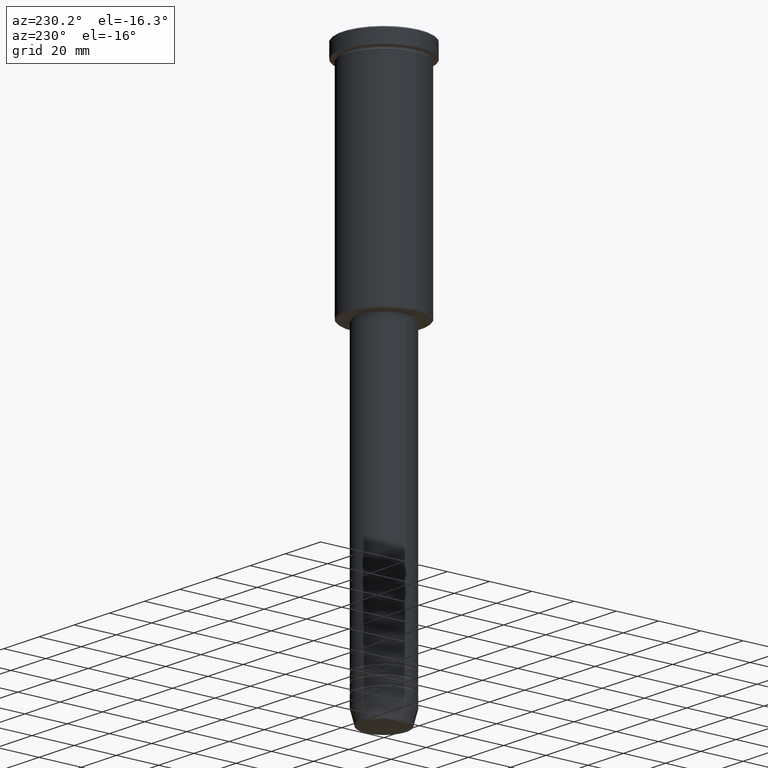
[diagram: clean part render]
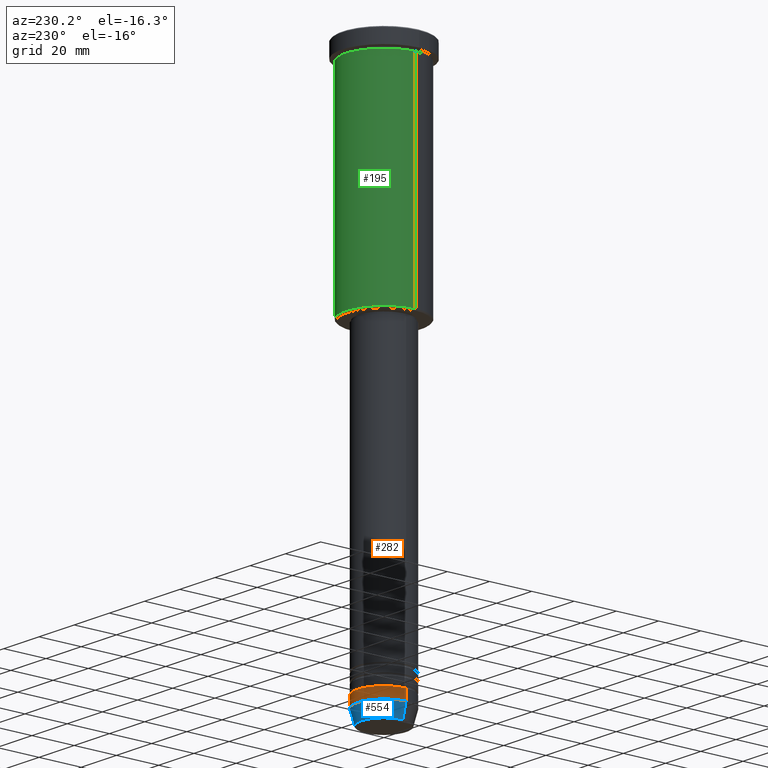
[diagram: same view with three faces highlighted in distinct colors, each labeled with its STEP entity id]
A machine part, auxiliary view with three faces highlighted in distinct colors.
Their STEP definitions:

[orange] entity #282 — the highlighted cylindrical surface (edge-blend (fillet) strip) has radius 12.5 mm, axis along (-0, -0, 1).
#1 = CYLINDRICAL_SURFACE ( 'NONE', #907, 12.50000000000000000 ) ;
#61 = CARTESIAN_POINT ( 'NONE',  ( 0.000000000000000000, 0.000000000000000000, -248.0000000000000000 ) ) ;
#74 = CARTESIAN_POINT ( 'NONE',  ( -12.50000000000000000, 1.530808498934191521E-15, -248.0000000000000000 ) ) ;
#86 = EDGE_CURVE ( 'NONE', #438, #116, #517, .T. ) ;
#93 = EDGE_CURVE ( 'NONE', #431, #438, #347, .T. ) ;
#116 = VERTEX_POINT ( 'NONE', #74 ) ;
#136 = CARTESIAN_POINT ( 'NONE',  ( 12.50000000000000000, 0.000000000000000000, -253.0000000000000000 ) ) ;
#167 = VECTOR ( 'NONE', #1036, 1000.000000000000000 ) ;
#196 = DIRECTION ( 'NONE',  ( -0.000000000000000000, -0.000000000000000000, 1.000000000000000000 ) ) ;
#202 = EDGE_CURVE ( 'NONE', #857, #116, #375, .T. ) ;
#222 = FACE_OUTER_BOUND ( 'NONE', #1018, .T. ) ;
#251 = DIRECTION ( 'NONE',  ( -0.000000000000000000, -0.000000000000000000, 1.000000000000000000 ) ) ;
#274 = CARTESIAN_POINT ( 'NONE',  ( -12.50000000000000000, 1.530808498934191521E-15, 0.000000000000000000 ) ) ;
#282 = ADVANCED_FACE ( 'NONE', ( #222 ), #1, .T. ) ;
#305 = EDGE_CURVE ( 'NONE', #431, #857, #1025, .T. ) ;
#306 = ORIENTED_EDGE ( 'NONE', *, *, #305, .T. ) ;
#347 = LINE ( 'NONE', #1066, #966 ) ;
#368 = CARTESIAN_POINT ( 'NONE',  ( 0.000000000000000000, 0.000000000000000000, 0.000000000000000000 ) ) ;
#375 = LINE ( 'NONE', #274, #167 ) ;
#429 = DIRECTION ( 'NONE',  ( 1.000000000000000000, 0.000000000000000000, 0.000000000000000000 ) ) ;
#431 = VERTEX_POINT ( 'NONE', #136 ) ;
#438 = VERTEX_POINT ( 'NONE', #965 ) ;
#451 = AXIS2_PLACEMENT_3D ( 'NONE', #1011, #548, #924 ) ;
#517 = CIRCLE ( 'NONE', #693, 12.50000000000000000 ) ;
#548 = DIRECTION ( 'NONE',  ( -0.000000000000000000, -0.000000000000000000, 1.000000000000000000 ) ) ;
#574 = ORIENTED_EDGE ( 'NONE', *, *, #93, .F. ) ;
#693 = AXIS2_PLACEMENT_3D ( 'NONE', #61, #1161, #429 ) ;
#724 = DIRECTION ( 'NONE',  ( 1.000000000000000000, 0.000000000000000000, 0.000000000000000000 ) ) ;
#733 = ORIENTED_EDGE ( 'NONE', *, *, #86, .F. ) ;
#791 = CARTESIAN_POINT ( 'NONE',  ( -12.50000000000000000, 1.530808498934191521E-15, -253.0000000000000000 ) ) ;
#857 = VERTEX_POINT ( 'NONE', #791 ) ;
#907 = AXIS2_PLACEMENT_3D ( 'NONE', #368, #196, #724 ) ;
#924 = DIRECTION ( 'NONE',  ( 1.000000000000000000, 0.000000000000000000, 0.000000000000000000 ) ) ;
#965 = CARTESIAN_POINT ( 'NONE',  ( 12.50000000000000000, 0.000000000000000000, -248.0000000000000000 ) ) ;
#966 = VECTOR ( 'NONE', #251, 1000.000000000000000 ) ;
#1011 = CARTESIAN_POINT ( 'NONE',  ( 0.000000000000000000, 0.000000000000000000, -253.0000000000000000 ) ) ;
#1014 = ORIENTED_EDGE ( 'NONE', *, *, #202, .T. ) ;
#1018 = EDGE_LOOP ( 'NONE', ( #306, #1014, #733, #574 ) ) ;
#1025 = CIRCLE ( 'NONE', #451, 12.50000000000000000 ) ;
#1036 = DIRECTION ( 'NONE',  ( -0.000000000000000000, -0.000000000000000000, 1.000000000000000000 ) ) ;
#1066 = CARTESIAN_POINT ( 'NONE',  ( 12.50000000000000000, 0.000000000000000000, 0.000000000000000000 ) ) ;
#1161 = DIRECTION ( 'NONE',  ( -0.000000000000000000, -0.000000000000000000, 1.000000000000000000 ) ) ;

[blue] entity #554 — the highlighted conical surface has half-angle 15 deg.
#34 = VECTOR ( 'NONE', #1108, 1000.000000000000000 ) ;
#70 = DIRECTION ( 'NONE',  ( 1.000000000000000000, 0.000000000000000000, 0.000000000000000000 ) ) ;
#134 = VERTEX_POINT ( 'NONE', #984 ) ;
#136 = CARTESIAN_POINT ( 'NONE',  ( 12.50000000000000000, 0.000000000000000000, -253.0000000000000000 ) ) ;
#182 = ORIENTED_EDGE ( 'NONE', *, *, #1017, .T. ) ;
#305 = EDGE_CURVE ( 'NONE', #431, #857, #1025, .T. ) ;
#399 = VECTOR ( 'NONE', #893, 1000.000000000000000 ) ;
#421 = ORIENTED_EDGE ( 'NONE', *, *, #305, .F. ) ;
#431 = VERTEX_POINT ( 'NONE', #136 ) ;
#440 = FACE_OUTER_BOUND ( 'NONE', #753, .T. ) ;
#451 = AXIS2_PLACEMENT_3D ( 'NONE', #1011, #548, #924 ) ;
#468 = ORIENTED_EDGE ( 'NONE', *, *, #712, .F. ) ;
#514 = CARTESIAN_POINT ( 'NONE',  ( 10.72365507213719127, 0.000000000000000000, -259.6294095225512706 ) ) ;
#538 = CARTESIAN_POINT ( 'NONE',  ( 0.000000000000000000, 0.000000000000000000, -253.0000000000000000 ) ) ;
#548 = DIRECTION ( 'NONE',  ( -0.000000000000000000, -0.000000000000000000, 1.000000000000000000 ) ) ;
#554 = ADVANCED_FACE ( 'NONE', ( #440 ), #813, .T. ) ;
#570 = LINE ( 'NONE', #648, #34 ) ;
#618 = DIRECTION ( 'NONE',  ( -0.000000000000000000, -0.000000000000000000, 1.000000000000000000 ) ) ;
#648 = CARTESIAN_POINT ( 'NONE',  ( 12.50000000000000000, 0.000000000000000000, -253.0000000000000000 ) ) ;
#665 = ORIENTED_EDGE ( 'NONE', *, *, #1053, .T. ) ;
#712 = EDGE_CURVE ( 'NONE', #1073, #431, #570, .T. ) ;
#753 = EDGE_LOOP ( 'NONE', ( #182, #665, #421, #468 ) ) ;
#791 = CARTESIAN_POINT ( 'NONE',  ( -12.50000000000000000, 1.530808498934191521E-15, -253.0000000000000000 ) ) ;
#803 = DIRECTION ( 'NONE',  ( -0.000000000000000000, -0.000000000000000000, 1.000000000000000000 ) ) ;
#813 = CONICAL_SURFACE ( 'NONE', #930, 12.50000000000000000, 0.2617993877991500740 ) ;
#814 = CIRCLE ( 'NONE', #1121, 10.72365507213719127 ) ;
#857 = VERTEX_POINT ( 'NONE', #791 ) ;
#893 = DIRECTION ( 'NONE',  ( -0.2588190451025213501, 3.169619151431772337E-17, 0.9659258262890680902 ) ) ;
#924 = DIRECTION ( 'NONE',  ( 1.000000000000000000, 0.000000000000000000, 0.000000000000000000 ) ) ;
#930 = AXIS2_PLACEMENT_3D ( 'NONE', #538, #803, #70 ) ;
#984 = CARTESIAN_POINT ( 'NONE',  ( -10.72365507213719127, 1.422038742429750516E-15, -259.6294095225512706 ) ) ;
#989 = LINE ( 'NONE', #1169, #399 ) ;
#1011 = CARTESIAN_POINT ( 'NONE',  ( 0.000000000000000000, 0.000000000000000000, -253.0000000000000000 ) ) ;
#1017 = EDGE_CURVE ( 'NONE', #1073, #134, #814, .T. ) ;
#1025 = CIRCLE ( 'NONE', #451, 12.50000000000000000 ) ;
#1053 = EDGE_CURVE ( 'NONE', #134, #857, #989, .T. ) ;
#1073 = VERTEX_POINT ( 'NONE', #514 ) ;
#1079 = CARTESIAN_POINT ( 'NONE',  ( 0.000000000000000000, 0.000000000000000000, -259.6294095225512706 ) ) ;
#1085 = DIRECTION ( 'NONE',  ( 1.000000000000000000, 0.000000000000000000, 0.000000000000000000 ) ) ;
#1108 = DIRECTION ( 'NONE',  ( 0.2588190451025213501, 0.000000000000000000, 0.9659258262890680902 ) ) ;
#1121 = AXIS2_PLACEMENT_3D ( 'NONE', #1079, #618, #1085 ) ;
#1169 = CARTESIAN_POINT ( 'NONE',  ( -12.50000000000000000, 1.530808498934191521E-15, -253.0000000000000000 ) ) ;

[green] entity #195 — the highlighted cylindrical surface (partial cylindrical patch) has radius 18 mm, axis along (-0, -0, 1).
#12 = EDGE_LOOP ( 'NONE', ( #83, #828, #1034, #231 ) ) ;
#18 = CARTESIAN_POINT ( 'NONE',  ( 0.000000000000000000, 0.000000000000000000, 0.000000000000000000 ) ) ;
#76 = DIRECTION ( 'NONE',  ( -0.000000000000000000, -0.000000000000000000, 1.000000000000000000 ) ) ;
#83 = ORIENTED_EDGE ( 'NONE', *, *, #1059, .T. ) ;
#156 = CARTESIAN_POINT ( 'NONE',  ( -18.00000000000000000, 2.204364238465235428E-15, 0.000000000000000000 ) ) ;
#195 = ADVANCED_FACE ( 'NONE', ( #454 ), #458, .T. ) ;
#231 = ORIENTED_EDGE ( 'NONE', *, *, #1152, .F. ) ;
#288 = LINE ( 'NONE', #563, #505 ) ;
#345 = AXIS2_PLACEMENT_3D ( 'NONE', #819, #76, #903 ) ;
#382 = AXIS2_PLACEMENT_3D ( 'NONE', #416, #943, #486 ) ;
#386 = VERTEX_POINT ( 'NONE', #865 ) ;
#416 = CARTESIAN_POINT ( 'NONE',  ( 0.000000000000000000, 0.000000000000000000, -7.999999999999996447 ) ) ;
#422 = LINE ( 'NONE', #156, #1160 ) ;
#454 = FACE_OUTER_BOUND ( 'NONE', #12, .T. ) ;
#458 = CYLINDRICAL_SURFACE ( 'NONE', #773, 18.00000000000000000 ) ;
#474 = VERTEX_POINT ( 'NONE', #497 ) ;
#486 = DIRECTION ( 'NONE',  ( 1.000000000000000000, 0.000000000000000000, 0.000000000000000000 ) ) ;
#496 = DIRECTION ( 'NONE',  ( -0.000000000000000000, -0.000000000000000000, 1.000000000000000000 ) ) ;
#497 = CARTESIAN_POINT ( 'NONE',  ( 18.00000000000000000, 0.000000000000000000, -7.999999999999996447 ) ) ;
#505 = VECTOR ( 'NONE', #568, 1000.000000000000000 ) ;
#563 = CARTESIAN_POINT ( 'NONE',  ( 18.00000000000000000, 0.000000000000000000, 0.000000000000000000 ) ) ;
#568 = DIRECTION ( 'NONE',  ( -0.000000000000000000, -0.000000000000000000, 1.000000000000000000 ) ) ;
#699 = CIRCLE ( 'NONE', #345, 18.00000000000000000 ) ;
#719 = DIRECTION ( 'NONE',  ( 1.000000000000000000, 0.000000000000000000, 0.000000000000000000 ) ) ;
#722 = CARTESIAN_POINT ( 'NONE',  ( -18.00000000000000000, 2.204364238465235428E-15, -105.4999999999999716 ) ) ;
#773 = AXIS2_PLACEMENT_3D ( 'NONE', #18, #1092, #719 ) ;
#819 = CARTESIAN_POINT ( 'NONE',  ( 0.000000000000000000, 0.000000000000000000, -105.4999999999999716 ) ) ;
#822 = EDGE_CURVE ( 'NONE', #961, #386, #422, .T. ) ;
#828 = ORIENTED_EDGE ( 'NONE', *, *, #822, .T. ) ;
#834 = CIRCLE ( 'NONE', #382, 18.00000000000000000 ) ;
#865 = CARTESIAN_POINT ( 'NONE',  ( -18.00000000000000000, 2.204364238465235428E-15, -7.999999999999996447 ) ) ;
#903 = DIRECTION ( 'NONE',  ( -1.000000000000000000, 0.000000000000000000, 0.000000000000000000 ) ) ;
#922 = CARTESIAN_POINT ( 'NONE',  ( 18.00000000000000000, 0.000000000000000000, -105.4999999999999716 ) ) ;
#928 = EDGE_CURVE ( 'NONE', #474, #386, #834, .T. ) ;
#943 = DIRECTION ( 'NONE',  ( -0.000000000000000000, -0.000000000000000000, 1.000000000000000000 ) ) ;
#961 = VERTEX_POINT ( 'NONE', #722 ) ;
#1034 = ORIENTED_EDGE ( 'NONE', *, *, #928, .F. ) ;
#1059 = EDGE_CURVE ( 'NONE', #1106, #961, #699, .T. ) ;
#1092 = DIRECTION ( 'NONE',  ( -0.000000000000000000, -0.000000000000000000, 1.000000000000000000 ) ) ;
#1106 = VERTEX_POINT ( 'NONE', #922 ) ;
#1152 = EDGE_CURVE ( 'NONE', #1106, #474, #288, .T. ) ;
#1160 = VECTOR ( 'NONE', #496, 1000.000000000000000 ) ;